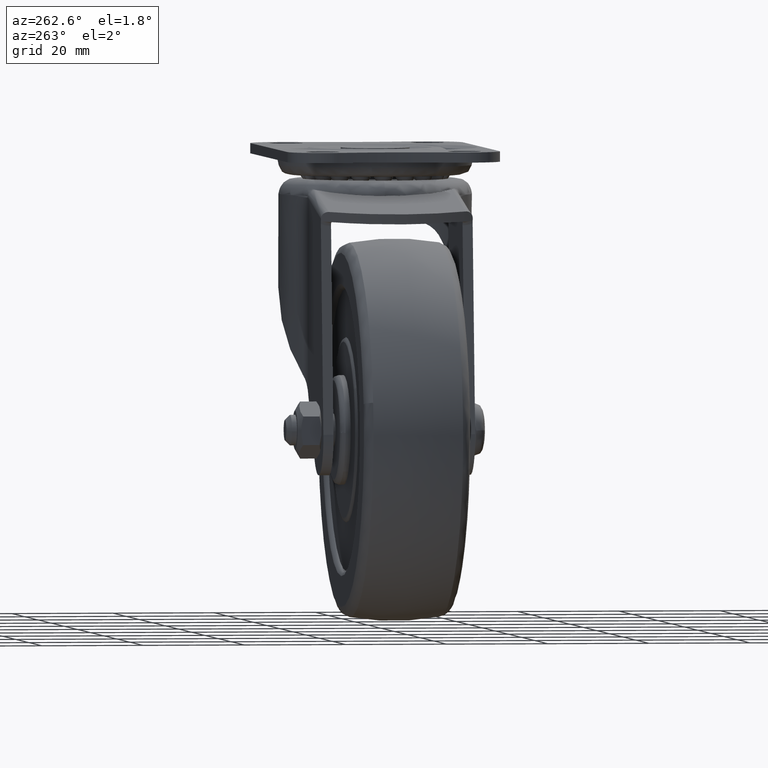
[diagram: clean part render]
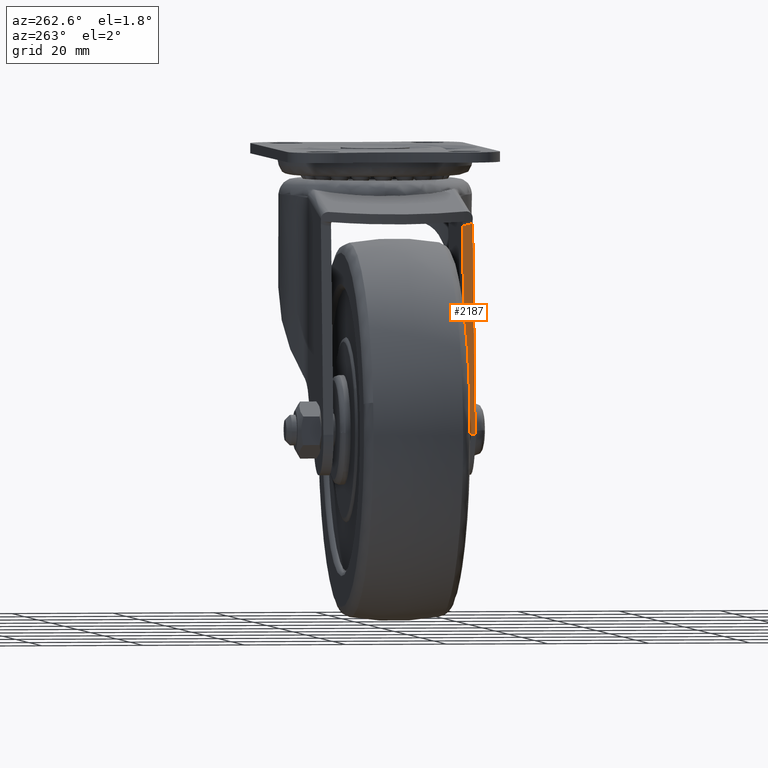
[diagram: same view with one face highlighted and labeled with its STEP entity id]
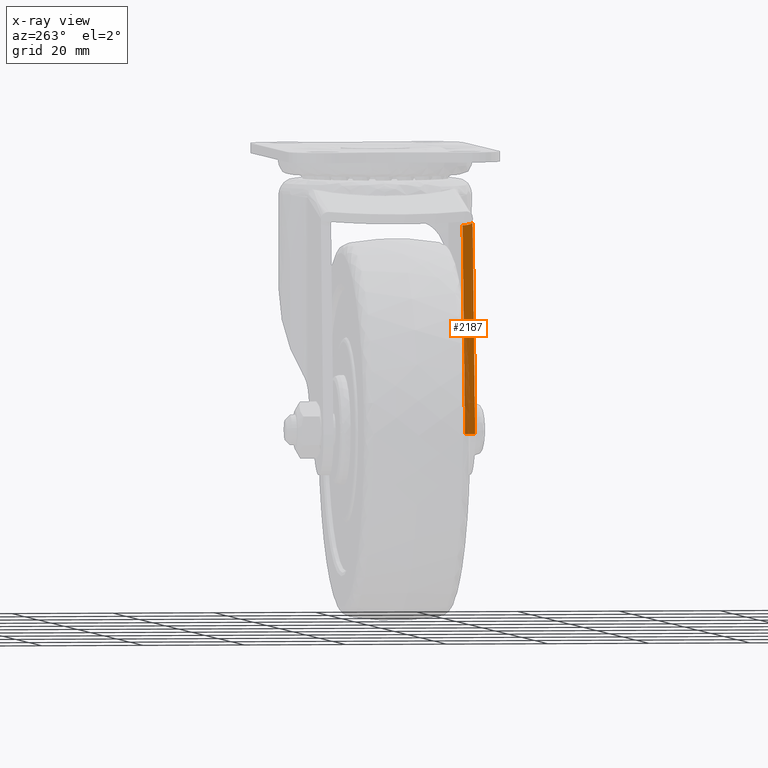
[diagram: x-ray of the same camera — body ghosted, the highlighted face saturated]
A machine part, auxiliary view. The second image highlights one B-rep face of the part: STEP entity #2187.
The next image is the same camera in x-ray: the body ghosted, the highlighted face saturated — about 22% of this face is hidden behind the body in this view.
In plain terms, the highlighted face is a freeform B-spline surface patch.
Its self-contained STEP definition (entity closure, byte-faithful):
#2135=CARTESIAN_POINT('',(-7.857970976493972,-15.099899996123609,-2.776036062021028));
#2136=CARTESIAN_POINT('',(-3.687115213216179,-15.099899996123609,42.630614535364501));
#2137=CARTESIAN_POINT('',(-7.857970976493972,-12.900099950232210,-2.776036062021028));
#2138=CARTESIAN_POINT('',(-3.687115213216179,-12.900099950232210,42.630614535364501));
#2139=B_SPLINE_SURFACE_WITH_KNOTS('',1,1,((#2135,#2137),(#2136,#2138)),.UNSPECIFIED.,.F.,.F.,.U.,(2,2),(2,2),(0.0,45.597806485302769),(0.0,2.199800045891408),.UNSPECIFIED.);
#2140=CARTESIAN_POINT('',(-3.876527291420280,-15.0,40.568551366059737));
#2141=VERTEX_POINT('',#2140);
#2142=CARTESIAN_POINT('',(-7.668559000000100,-15.0,-0.713973999999894));
#2143=VERTEX_POINT('',#2142);
#2144=CARTESIAN_POINT('',(-3.876527291420280,-15.0,40.568551366059737));
#2145=CARTESIAN_POINT('',(-7.668559000000100,-15.0,-0.713973999999894));
#2146=QUASI_UNIFORM_CURVE('',1,(#2144,#2145),.UNSPECIFIED.,.F.,.U.);
#2147=EDGE_CURVE('',#2141,#2143,#2146,.T.);
#2148=ORIENTED_EDGE('',*,*,#2147,.F.);
#2149=CARTESIAN_POINT('',(-3.915226308314934,-13.084720162847679,40.147248679433751));
#2150=VERTEX_POINT('',#2149);
#2151=CARTESIAN_POINT('',(-3.876527291420280,-15.0,40.568551366059737));
#2152=CARTESIAN_POINT('',(-3.880451366184057,-14.928325131593120,40.525831334049471));
#2153=CARTESIAN_POINT('',(-3.883866273384666,-14.853821992883370,40.488654431542820));
#2154=CARTESIAN_POINT('',(-3.890008102670119,-14.701176066947561,40.421790480300757));
#2155=CARTESIAN_POINT('',(-3.892715919582472,-14.623288513734099,40.392311422908413));
#2156=CARTESIAN_POINT('',(-3.899954393203049,-14.388515881273729,40.313508687642013));
#2157=CARTESIAN_POINT('',(-3.903659671651455,-14.229444849383960,40.273170614732827));
#2158=CARTESIAN_POINT('',(-3.909508299211598,-13.907739497571860,40.209498648313890));
#2159=CARTESIAN_POINT('',(-3.911636456291813,-13.745070519497700,40.186330145147593));
#2160=CARTESIAN_POINT('',(-3.914498051257895,-13.416550738091789,40.155176959770102));
#2161=CARTESIAN_POINT('',(-3.915226308315002,-13.250526612564610,40.147248679433012));
#2162=CARTESIAN_POINT('',(-3.915226308315005,-13.084720162847720,40.147248679432998));
#2163=B_SPLINE_CURVE_WITH_KNOTS('',3,(#2151,#2152,#2153,#2154,#2155,#2156,#2157,#2158,#2159,#2160,#2161,#2162),.UNSPECIFIED.,.F.,.U.,(4,2,2,2,2,4),(0.0,0.124999999999999,0.249999999999998,0.499999999999998,0.749999999999999,1.0),.UNSPECIFIED.);
#2164=EDGE_CURVE('',#2141,#2150,#2163,.T.);
#2165=ORIENTED_EDGE('',*,*,#2164,.T.);
#2166=CARTESIAN_POINT('',(-3.915226308314934,-13.0,40.147248679434000));
#2167=VERTEX_POINT('',#2166);
#2168=CARTESIAN_POINT('',(-3.915226308314934,-13.084720162847679,40.147248679433751));
#2169=CARTESIAN_POINT('',(-3.915226308314934,-13.0,40.147248679434000));
#2170=QUASI_UNIFORM_CURVE('',1,(#2168,#2169),.UNSPECIFIED.,.F.,.U.);
#2171=EDGE_CURVE('',#2150,#2167,#2170,.T.);
#2172=ORIENTED_EDGE('',*,*,#2171,.T.);
#2173=CARTESIAN_POINT('',(-7.668559000000100,-13.0,-0.713973999999894));
#2174=VERTEX_POINT('',#2173);
#2175=CARTESIAN_POINT('',(-3.915226308314934,-13.0,40.147248679434000));
#2176=CARTESIAN_POINT('',(-7.668559000000100,-13.0,-0.713973999999894));
#2177=QUASI_UNIFORM_CURVE('',1,(#2175,#2176),.UNSPECIFIED.,.F.,.U.);
#2178=EDGE_CURVE('',#2167,#2174,#2177,.T.);
#2179=ORIENTED_EDGE('',*,*,#2178,.T.);
#2180=CARTESIAN_POINT('',(-7.668559000000100,-13.0,-0.713973999999894));
#2181=CARTESIAN_POINT('',(-7.668559000000100,-15.0,-0.713973999999894));
#2182=QUASI_UNIFORM_CURVE('',1,(#2180,#2181),.UNSPECIFIED.,.F.,.U.);
#2183=EDGE_CURVE('',#2174,#2143,#2182,.T.);
#2184=ORIENTED_EDGE('',*,*,#2183,.T.);
#2185=EDGE_LOOP('',(#2148,#2165,#2172,#2179,#2184));
#2186=FACE_OUTER_BOUND('',#2185,.T.);
#2187=ADVANCED_FACE('',(#2186),#2139,.T.);